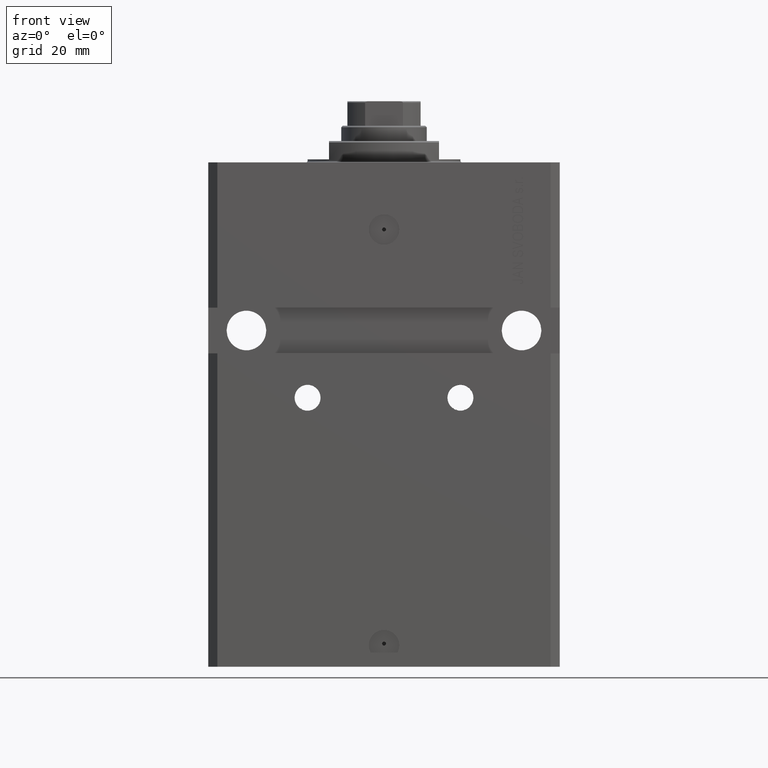
[diagram: clean part render]
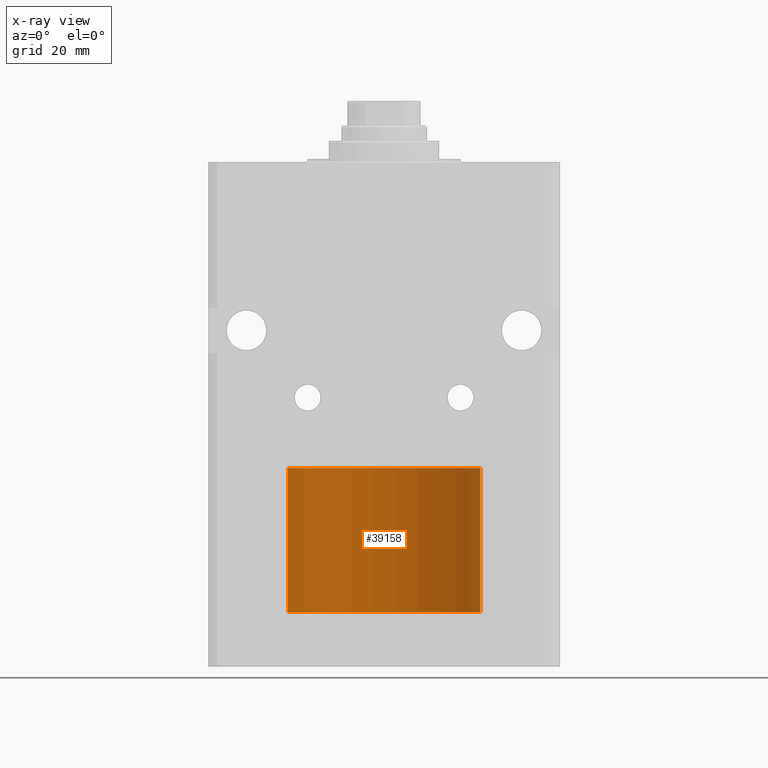
[diagram: x-ray — body ghosted, one internal face saturated and labeled with its STEP entity id]
A machine part, front view, then the same camera in x-ray: the body is ghosted and one INTERNAL B-rep face — a face not visible from any outside direction — is saturated and labeled: STEP entity #39158.
In plain terms, the highlighted cylindrical surface (partial cylindrical patch) has radius 31.5 mm, axis along (-0, -0, -1).
Its self-contained STEP definition (entity closure, byte-faithful):
#86 = DIRECTION ( 'NONE',  ( 1.000000000000000000, 0.000000000000000000, 0.000000000000000000 ) ) ;
#1934 = EDGE_CURVE ( 'NONE', #45157, #28905, #23348, .T. ) ;
#5618 = CARTESIAN_POINT ( 'NONE',  ( 31.50000000000000000, 3.857637417314162689E-15, 47.10000000000000142 ) ) ;
#8953 = ORIENTED_EDGE ( 'NONE', *, *, #21650, .T. ) ;
#10043 = DIRECTION ( 'NONE',  ( 1.000000000000000000, 0.000000000000000000, 0.000000000000000000 ) ) ;
#11528 = ORIENTED_EDGE ( 'NONE', *, *, #14680, .F. ) ;
#13288 = FACE_OUTER_BOUND ( 'NONE', #20950, .T. ) ;
#14680 = EDGE_CURVE ( 'NONE', #20785, #45157, #42083, .T. ) ;
#15623 = LINE ( 'NONE', #23856, #40917 ) ;
#17416 = AXIS2_PLACEMENT_3D ( 'NONE', #26484, #42410, #86 ) ;
#19940 = ORIENTED_EDGE ( 'NONE', *, *, #1934, .F. ) ;
#20293 = DIRECTION ( 'NONE',  ( -0.000000000000000000, -0.000000000000000000, -1.000000000000000000 ) ) ;
#20525 = CARTESIAN_POINT ( 'NONE',  ( 0.000000000000000000, 0.000000000000000000, 47.10000000000000142 ) ) ;
#20785 = VERTEX_POINT ( 'NONE', #5618 ) ;
#20950 = EDGE_LOOP ( 'NONE', ( #11528, #32305, #8953, #19940 ) ) ;
#21650 = EDGE_CURVE ( 'NONE', #24743, #28905, #31065, .T. ) ;
#23280 = CARTESIAN_POINT ( 'NONE',  ( 31.50000000000000000, 3.857637417314162689E-15, 0.000000000000000000 ) ) ;
#23348 = LINE ( 'NONE', #31304, #25644 ) ;
#23618 = DIRECTION ( 'NONE',  ( -0.000000000000000000, -0.000000000000000000, -1.000000000000000000 ) ) ;
#23856 = CARTESIAN_POINT ( 'NONE',  ( 31.50000000000000000, 3.857637417314162689E-15, 47.10000000000000142 ) ) ;
#24743 = VERTEX_POINT ( 'NONE', #23280 ) ;
#25644 = VECTOR ( 'NONE', #35278, 1000.000000000000000 ) ;
#26484 = CARTESIAN_POINT ( 'NONE',  ( 0.000000000000000000, 0.000000000000000000, 47.10000000000000142 ) ) ;
#28905 = VERTEX_POINT ( 'NONE', #43164 ) ;
#31065 = CIRCLE ( 'NONE', #36613, 31.50000000000000000 ) ;
#31304 = CARTESIAN_POINT ( 'NONE',  ( -31.50000000000000000, 0.000000000000000000, 47.10000000000000142 ) ) ;
#32305 = ORIENTED_EDGE ( 'NONE', *, *, #48377, .T. ) ;
#35278 = DIRECTION ( 'NONE',  ( -0.000000000000000000, -0.000000000000000000, -1.000000000000000000 ) ) ;
#35722 = DIRECTION ( 'NONE',  ( -1.000000000000000000, 0.000000000000000000, 0.000000000000000000 ) ) ;
#36613 = AXIS2_PLACEMENT_3D ( 'NONE', #36939, #39953, #10043 ) ;
#36939 = CARTESIAN_POINT ( 'NONE',  ( 0.000000000000000000, 0.000000000000000000, 0.000000000000000000 ) ) ;
#39158 = ADVANCED_FACE ( 'NONE', ( #13288 ), #39472, .T. ) ;
#39472 = CYLINDRICAL_SURFACE ( 'NONE', #47106, 31.50000000000000000 ) ;
#39953 = DIRECTION ( 'NONE',  ( 0.000000000000000000, 0.000000000000000000, 1.000000000000000000 ) ) ;
#40484 = CARTESIAN_POINT ( 'NONE',  ( -31.50000000000000000, 0.000000000000000000, 47.10000000000000142 ) ) ;
#40917 = VECTOR ( 'NONE', #23618, 1000.000000000000000 ) ;
#42083 = CIRCLE ( 'NONE', #17416, 31.50000000000000000 ) ;
#42410 = DIRECTION ( 'NONE',  ( 0.000000000000000000, 0.000000000000000000, 1.000000000000000000 ) ) ;
#43164 = CARTESIAN_POINT ( 'NONE',  ( -31.50000000000000000, 0.000000000000000000, 0.000000000000000000 ) ) ;
#45157 = VERTEX_POINT ( 'NONE', #40484 ) ;
#47106 = AXIS2_PLACEMENT_3D ( 'NONE', #20525, #20293, #35722 ) ;
#48377 = EDGE_CURVE ( 'NONE', #20785, #24743, #15623, .T. ) ;